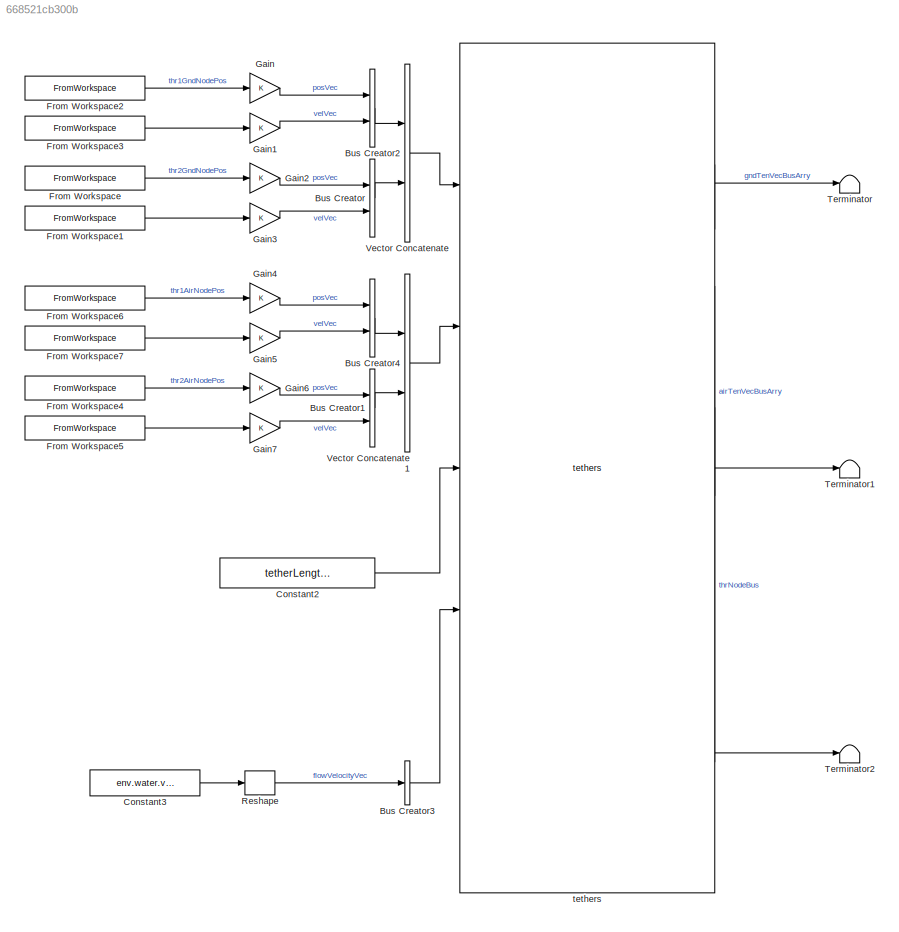
MODEL slx_668521cb300b
KIND model
CONFIG AbsTol = auto
CONFIG EnableMultiTasking = off
CONFIG FixedStep = .1
CONFIG MaxStep = auto
CONFIG MinStep = auto
CONFIG RelTol = 1e-3
CONFIG SampleTimeConstraint = Unconstrained
CONFIG SolverName = ode15s
CONFIG StartTime = 0.0
CONFIG StopTime = simDuration
BLOCK [BusCreator] Bus Creator
  DisplayOption = bar
  InheritFromInputs = on
  Inputs = 2
  NonVirtualBus = on
  OutDataTypeStr = Bus: thrAttachPtKinematicsBus
  Ports = [2, 1]
BLOCK [BusCreator] Bus Creator1
  DisplayOption = bar
  InheritFromInputs = on
  Inputs = 2
  NonVirtualBus = on
  OutDataTypeStr = Bus: thrAttachPtKinematicsBus
  Ports = [2, 1]
BLOCK [BusCreator] Bus Creator2
  DisplayOption = bar
  InheritFromInputs = on
  Inputs = 2
  NonVirtualBus = on
  OutDataTypeStr = Bus: thrAttachPtKinematicsBus
  Ports = [2, 1]
BLOCK [BusCreator] Bus Creator3
  DisplayOption = bar
  InheritFromInputs = on
  Inputs = 1
  OutDataTypeStr = Bus:envBus
  Ports = [1, 1]
BLOCK [BusCreator] Bus Creator4
  DisplayOption = bar
  InheritFromInputs = on
  Inputs = 2
  NonVirtualBus = on
  OutDataTypeStr = Bus: thrAttachPtKinematicsBus
  Ports = [2, 1]
BLOCK [Constant] Constant2
  Value = tetherLengths
BLOCK [Constant] Constant3
  Value = env.water.velVec.Value
BLOCK [FromWorkspace] From Workspace
  VariableName = thr2GndNodePos
BLOCK [FromWorkspace] From Workspace1
  VariableName = thr2GndNodeVel
BLOCK [FromWorkspace] From Workspace2
  VariableName = thr1GndNodePos
BLOCK [FromWorkspace] From Workspace3
  VariableName = thr1GndNodeVel
BLOCK [FromWorkspace] From Workspace4
  VariableName = thr2AirNodePos
BLOCK [FromWorkspace] From Workspace5
  VariableName = thr2AirNodeVel
BLOCK [FromWorkspace] From Workspace6
  VariableName = thr1AirNodePos
BLOCK [FromWorkspace] From Workspace7
  VariableName = thr1AirNodeVel
BLOCK [Gain] Gain
BLOCK [Gain] Gain1
BLOCK [Gain] Gain2
BLOCK [Gain] Gain3
BLOCK [Gain] Gain4
BLOCK [Gain] Gain5
BLOCK [Gain] Gain6
BLOCK [Gain] Gain7
BLOCK [Reshape] Reshape
  OutputDimensionality = Column vector (2-D)
  Ports = [1, 1]
BLOCK [Terminator] Terminator
BLOCK [Terminator] Terminator1
BLOCK [Terminator] Terminator2
BLOCK [Concatenate] Vector Concatenate
  Ports = [2, 1]
BLOCK [Concatenate] Vector Concatenate1
  Ports = [2, 1]
BLOCK [Reference] tethers  REF=tethers_cl/tethers
  Ports = [5, 6]
  SourceBlock = tethers_cl/tethers
LINE Bus Creator1:1 -> Vector Concatenate1:2
LINE Bus Creator2:1 -> Vector Concatenate:1
LINE Bus Creator3:1 -> tethers:4
LINE Bus Creator4:1 -> Vector Concatenate1:1
LINE Bus Creator:1 -> Vector Concatenate:2
LINE Constant2:1 -> tethers:3
LINE Constant3:1 -> Reshape:1
LINE From Workspace1:1 -> Gain3:1
LINE From Workspace2:1 -> Gain:1
LINE From Workspace3:1 -> Gain1:1
LINE From Workspace4:1 -> Gain6:1
LINE From Workspace5:1 -> Gain7:1
LINE From Workspace6:1 -> Gain4:1
LINE From Workspace7:1 -> Gain5:1
LINE From Workspace:1 -> Gain2:1
LINE Gain1:1 -> Bus Creator2:2
LINE Gain2:1 -> Bus Creator:1
LINE Gain3:1 -> Bus Creator:2
LINE Gain4:1 -> Bus Creator4:1
LINE Gain5:1 -> Bus Creator4:2
LINE Gain6:1 -> Bus Creator1:1
LINE Gain7:1 -> Bus Creator1:2
LINE Gain:1 -> Bus Creator2:1
LINE Reshape:1 -> Bus Creator3:1
LINE Vector Concatenate1:1 -> tethers:2
LINE Vector Concatenate:1 -> tethers:1
LINE tethers:1 -> Terminator:1
LINE tethers:2 -> Terminator1:1
LINE tethers:3 -> Terminator2:1
